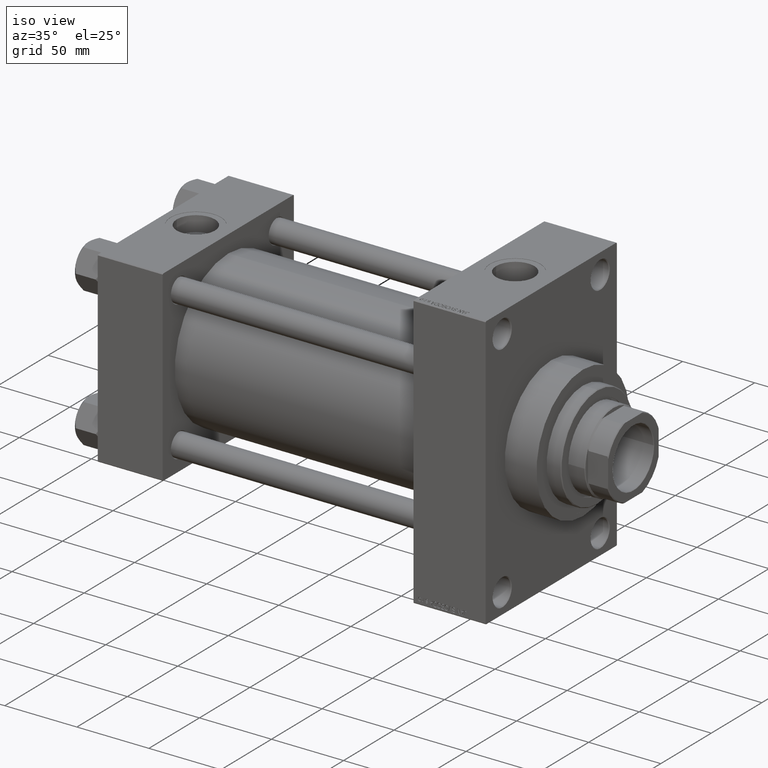
[diagram: clean part render]
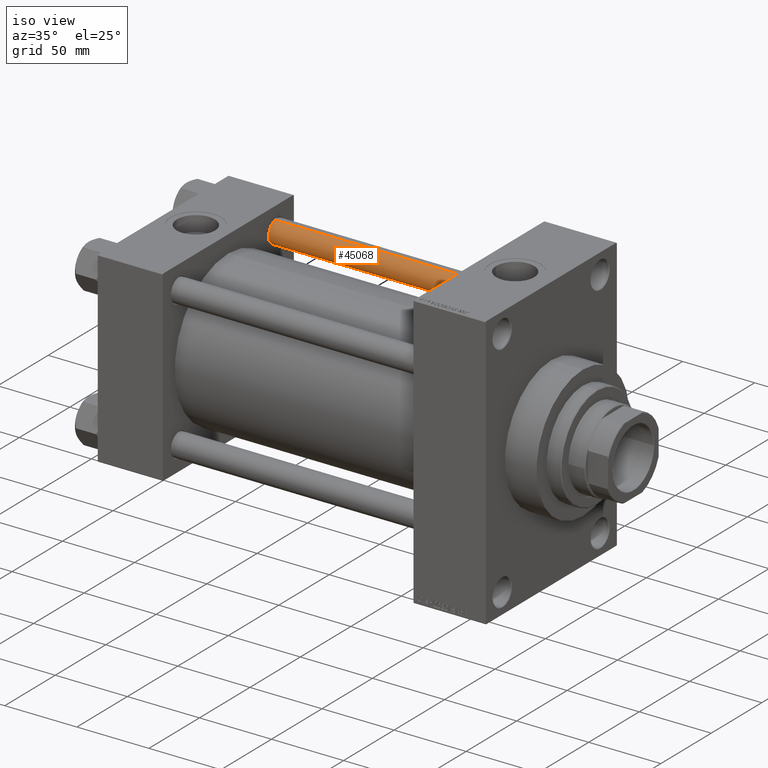
[diagram: same view with one face highlighted and labeled with its STEP entity id]
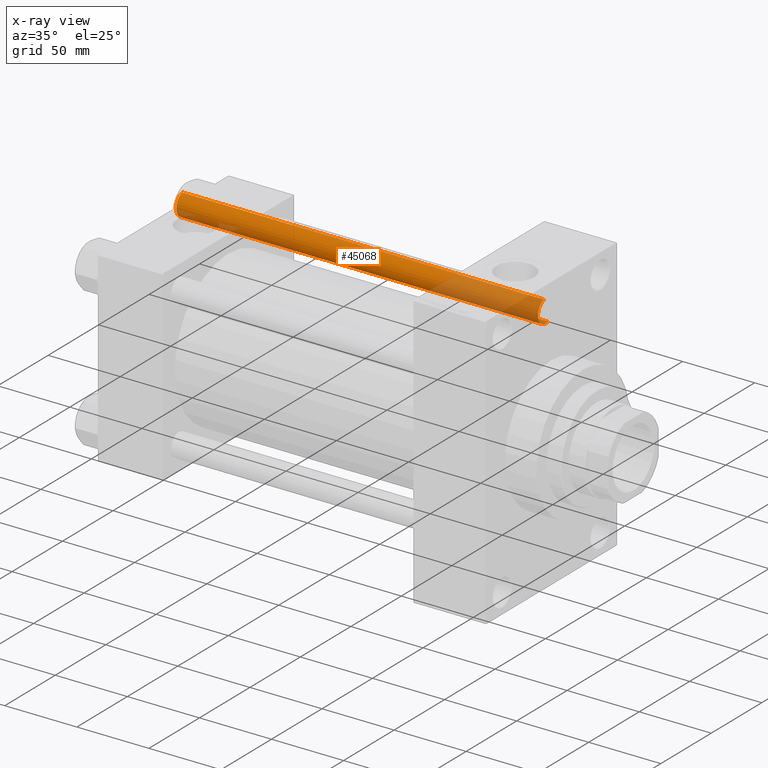
[diagram: x-ray of the same camera — body ghosted, the highlighted face saturated]
A machine part, iso view. The second image highlights one B-rep face of the part: STEP entity #45068.
The next image is the same camera in x-ray: the body ghosted, the highlighted face saturated — about 30% of this face is hidden behind the body in this view.
In plain terms, the highlighted cylindrical surface (edge-blend (fillet) strip) has radius 8 mm, axis along (-1, -0, 0).
Its self-contained STEP definition (entity closure, byte-faithful):
#1626 = EDGE_CURVE ( 'NONE', #46595, #19798, #15495, .T. ) ;
#1656 = LINE ( 'NONE', #40361, #41339 ) ;
#2331 = CARTESIAN_POINT ( 'NONE',  ( 0.000000000000000000, 0.000000000000000000, 252.0000000000000000 ) ) ;
#2379 = ORIENTED_EDGE ( 'NONE', *, *, #1626, .F. ) ;
#5702 = DIRECTION ( 'NONE',  ( -1.000000000000000000, 0.000000000000000000, 0.000000000000000000 ) ) ;
#7873 = CARTESIAN_POINT ( 'NONE',  ( 0.000000000000000000, 0.000000000000000000, 0.5000000000000559552 ) ) ;
#8004 = DIRECTION ( 'NONE',  ( -0.000000000000000000, -0.000000000000000000, -1.000000000000000000 ) ) ;
#9804 = DIRECTION ( 'NONE',  ( -0.000000000000000000, -0.000000000000000000, -1.000000000000000000 ) ) ;
#12521 = AXIS2_PLACEMENT_3D ( 'NONE', #2331, #9804, #5702 ) ;
#12691 = VECTOR ( 'NONE', #8004, 1000.000000000000000 ) ;
#12751 = CARTESIAN_POINT ( 'NONE',  ( -8.000000000000000000, 0.000000000000000000, 251.4999999999999432 ) ) ;
#15247 = AXIS2_PLACEMENT_3D ( 'NONE', #41142, #29766, #45012 ) ;
#15495 = LINE ( 'NONE', #33343, #12691 ) ;
#15672 = CARTESIAN_POINT ( 'NONE',  ( -8.000000000000000000, 0.000000000000000000, 0.5000000000000559552 ) ) ;
#16425 = VERTEX_POINT ( 'NONE', #15672 ) ;
#18396 = DIRECTION ( 'NONE',  ( -0.000000000000000000, -0.000000000000000000, -1.000000000000000000 ) ) ;
#19459 = FACE_OUTER_BOUND ( 'NONE', #32151, .T. ) ;
#19798 = VERTEX_POINT ( 'NONE', #39562 ) ;
#20000 = ORIENTED_EDGE ( 'NONE', *, *, #23080, .T. ) ;
#20424 = CYLINDRICAL_SURFACE ( 'NONE', #12521, 8.000000000000000000 ) ;
#22745 = EDGE_CURVE ( 'NONE', #32861, #16425, #1656, .T. ) ;
#23080 = EDGE_CURVE ( 'NONE', #16425, #19798, #46014, .T. ) ;
#24388 = AXIS2_PLACEMENT_3D ( 'NONE', #7873, #30782, #41196 ) ;
#25481 = EDGE_CURVE ( 'NONE', #46595, #32861, #32167, .T. ) ;
#29766 = DIRECTION ( 'NONE',  ( 0.000000000000000000, 0.000000000000000000, -1.000000000000000000 ) ) ;
#30782 = DIRECTION ( 'NONE',  ( -0.000000000000000000, -0.000000000000000000, 1.000000000000000000 ) ) ;
#31653 = CARTESIAN_POINT ( 'NONE',  ( 8.000000000000000000, 9.797174393178825657E-16, 251.4999999999999432 ) ) ;
#32151 = EDGE_LOOP ( 'NONE', ( #2379, #33303, #34400, #20000 ) ) ;
#32167 = CIRCLE ( 'NONE', #15247, 8.000000000000000000 ) ;
#32861 = VERTEX_POINT ( 'NONE', #12751 ) ;
#33303 = ORIENTED_EDGE ( 'NONE', *, *, #25481, .T. ) ;
#33343 = CARTESIAN_POINT ( 'NONE',  ( 8.000000000000000000, 9.797174393178825657E-16, 252.0000000000000000 ) ) ;
#34400 = ORIENTED_EDGE ( 'NONE', *, *, #22745, .T. ) ;
#39562 = CARTESIAN_POINT ( 'NONE',  ( 8.000000000000000000, 9.797174393178825657E-16, 0.5000000000000559552 ) ) ;
#40361 = CARTESIAN_POINT ( 'NONE',  ( -8.000000000000000000, 0.000000000000000000, 252.0000000000000000 ) ) ;
#41142 = CARTESIAN_POINT ( 'NONE',  ( 0.000000000000000000, 0.000000000000000000, 251.4999999999999432 ) ) ;
#41196 = DIRECTION ( 'NONE',  ( 1.000000000000000000, 0.000000000000000000, 0.000000000000000000 ) ) ;
#41339 = VECTOR ( 'NONE', #18396, 1000.000000000000000 ) ;
#45012 = DIRECTION ( 'NONE',  ( 1.000000000000000000, 0.000000000000000000, 0.000000000000000000 ) ) ;
#45068 = ADVANCED_FACE ( 'NONE', ( #19459 ), #20424, .T. ) ;
#46014 = CIRCLE ( 'NONE', #24388, 8.000000000000000000 ) ;
#46595 = VERTEX_POINT ( 'NONE', #31653 ) ;